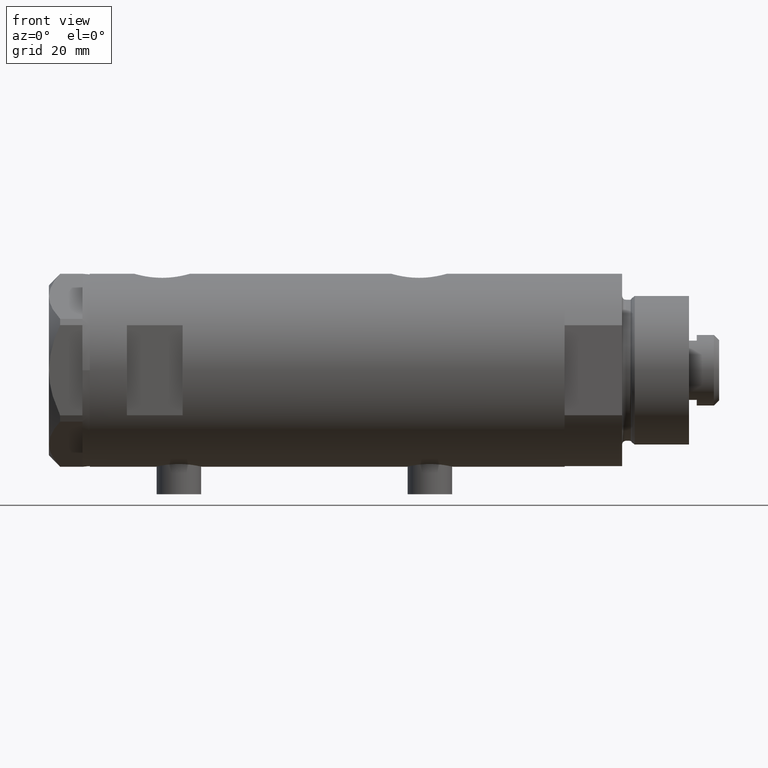
[diagram: clean part render]
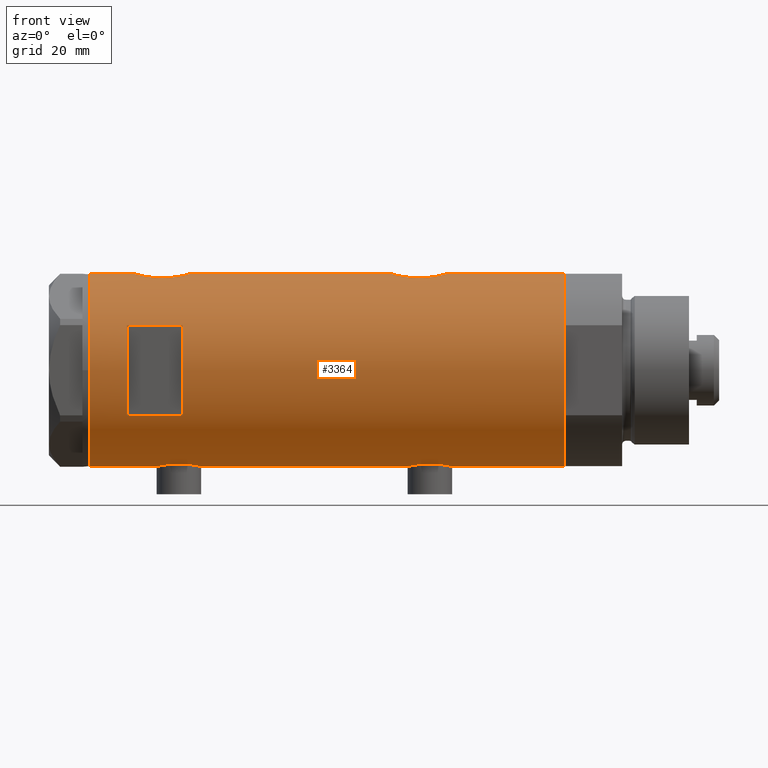
[diagram: same view with one face highlighted and labeled with its STEP entity id]
A machine part, front view. The second image highlights one B-rep face of the part: STEP entity #3364.
In plain terms, the highlighted cylindrical surface (partial cylindrical patch) has radius 26 mm, axis along (-1, -0, 0).
Its self-contained STEP definition (entity closure, byte-faithful):
#17 = CARTESIAN_POINT ( 'NONE',  ( 25.72873412774685775, -3.768477344985551536, 50.95287460144461988 ) ) ;
#19 = CARTESIAN_POINT ( 'NONE',  ( -25.67167563980648382, -4.129238867693851844, 35.24065943568895420 ) ) ;
#30 = CARTESIAN_POINT ( 'NONE',  ( -25.85385060263650558, -2.778671585188185134, -22.03685548695763430 ) ) ;
#35 = VECTOR ( 'NONE', #273, 1000.000000000000000 ) ;
#49 = AXIS2_PLACEMENT_3D ( 'NONE', #3003, #2505, #478 ) ;
#52 = CARTESIAN_POINT ( 'NONE',  ( -25.92364458890658696, -2.026637113504536458, 45.87630990691474153 ) ) ;
#74 = EDGE_CURVE ( 'NONE', #3150, #839, #2864, .T. ) ;
#108 = ORIENTED_EDGE ( 'NONE', *, *, #4770, .F. ) ;
#111 = CARTESIAN_POINT ( 'NONE',  ( -25.57228991600092272, -4.705691472451700719, -31.78339690124654027 ) ) ;
#115 = CARTESIAN_POINT ( 'NONE',  ( 25.17393786935996403, -6.507882790539422757, 40.68962666655968974 ) ) ;
#118 = CARTESIAN_POINT ( 'NONE',  ( -25.52274351135605102, -4.960534548086199536, 43.75751745340735255 ) ) ;
#140 = EDGE_CURVE ( 'NONE', #709, #3599, #765, .T. ) ;
#143 = CARTESIAN_POINT ( 'NONE',  ( 25.48871066912672489, -5.133852125086502127, 38.97709693256022945 ) ) ;
#201 = CARTESIAN_POINT ( 'NONE',  ( 25.52567976009756379, -4.956266804246105551, -19.09980072540905383 ) ) ;
#203 = VECTOR ( 'NONE', #2821, 1000.000000000000000 ) ;
#259 = FACE_OUTER_BOUND ( 'NONE', #4230, .T. ) ;
#273 = DIRECTION ( 'NONE',  ( 0.000000000000000000, 0.000000000000000000, 1.000000000000000000 ) ) ;
#276 = CARTESIAN_POINT ( 'NONE',  ( 25.31004928890824957, -5.952041021437452173, -20.18019400116494211 ) ) ;
#304 = CARTESIAN_POINT ( 'NONE',  ( 25.93085545515511470, -1.956676574435509242, -17.49272963169731909 ) ) ;
#317 = VERTEX_POINT ( 'NONE', #4563 ) ;
#343 = CARTESIAN_POINT ( 'NONE',  ( 25.52567976009756379, -4.956266804246105551, 50.10019927459094191 ) ) ;
#350 = ORIENTED_EDGE ( 'NONE', *, *, #1694, .T. ) ;
#376 = CARTESIAN_POINT ( 'NONE',  ( -25.85288666140180780, -2.767917424206675747, 34.34257790010329359 ) ) ;
#421 = CARTESIAN_POINT ( 'NONE',  ( -25.49846181844015192, -5.083495422175122513, 43.59177503382596797 ) ) ;
#443 = CARTESIAN_POINT ( 'NONE',  ( 26.00000000000000355, 0.000000000000000000, -63.95000000000000995 ) ) ;
#449 = CARTESIAN_POINT ( 'NONE',  ( -25.59645788645698872, -4.565358797148513226, 44.22330529203480864 ) ) ;
#456 = CARTESIAN_POINT ( 'NONE',  ( -25.99036913299956097, -0.8159609457881449313, -33.86031143031890878 ) ) ;
#476 = CARTESIAN_POINT ( 'NONE',  ( -25.38662204309617110, -5.616507264474310368, 42.72199377719325497 ) ) ;
#478 = DIRECTION ( 'NONE',  ( 1.000000000000000000, 0.000000000000000000, 0.000000000000000000 ) ) ;
#482 = VERTEX_POINT ( 'NONE', #1568 ) ;
#483 = CARTESIAN_POINT ( 'NONE',  ( -26.00000000000000355, 3.184077527325983904E-15, -33.90000000000001279 ) ) ;
#501 = CARTESIAN_POINT ( 'NONE',  ( -25.95206678899177888, -1.628763264760260565, 45.99800813330215021 ) ) ;
#527 = CARTESIAN_POINT ( 'NONE',  ( -25.25025691038242570, -6.198787452305309920, 39.12558834604205771 ) ) ;
#540 = EDGE_CURVE ( 'NONE', #317, #564, #3277, .T. ) ;
#564 = VERTEX_POINT ( 'NONE', #3450 ) ;
#571 = VECTOR ( 'NONE', #2346, 1000.000000000000000 ) ;
#586 = CARTESIAN_POINT ( 'NONE',  ( 24.96970063328116751, -7.247045583599691199, -26.69719214854802658 ) ) ;
#589 = ORIENTED_EDGE ( 'NONE', *, *, #3247, .F. ) ;
#614 = CARTESIAN_POINT ( 'NONE',  ( 25.78902964777116225, -3.336582972512953660, -31.48475840457738073 ) ) ;
#638 = CARTESIAN_POINT ( 'NONE',  ( 25.59500516383205593, -4.575229401795793294, -30.69787755065420143 ) ) ;
#658 = EDGE_CURVE ( 'NONE', #4642, #2210, #4130, .T. ) ;
#673 = VECTOR ( 'NONE', #2517, 1000.000000000000000 ) ;
#688 = CARTESIAN_POINT ( 'NONE',  ( 25.30930190055639883, -5.959775463244125326, -29.32974043478030168 ) ) ;
#709 = VERTEX_POINT ( 'NONE', #2015 ) ;
#713 = CARTESIAN_POINT ( 'NONE',  ( 26.00000000000000355, -3.975025925197986111E-20, 51.95000000000000284 ) ) ;
#756 = CARTESIAN_POINT ( 'NONE',  ( 24.96672817551788626, -7.257586026187397898, 46.40384199721297165 ) ) ;
#765 = CIRCLE ( 'NONE', #4890, 26.00000000000000355 ) ;
#785 = AXIS2_PLACEMENT_3D ( 'NONE', #4971, #1363, #4573 ) ;
#796 = VERTEX_POINT ( 'NONE', #1313 ) ;
#807 = CARTESIAN_POINT ( 'NONE',  ( -25.28680988956730502, -6.048472998962281189, -29.27627694188244334 ) ) ;
#812 = CARTESIAN_POINT ( 'NONE',  ( -25.52190669608696183, -4.968444991210422934, 36.13658907807516130 ) ) ;
#816 = CARTESIAN_POINT ( 'NONE',  ( -25.92425332714051223, -2.018894156999441858, -33.57896120675329854 ) ) ;
#817 = ORIENTED_EDGE ( 'NONE', *, *, #5102, .F. ) ;
#833 = CARTESIAN_POINT ( 'NONE',  ( -25.64593536028936782, -4.278686337618957225, 44.51031602960880207 ) ) ;
#839 = VERTEX_POINT ( 'NONE', #3440 ) ;
#863 = CARTESIAN_POINT ( 'NONE',  ( -25.28632996747171902, -6.050474653715411932, 41.56911870841535972 ) ) ;
#887 = CARTESIAN_POINT ( 'NONE',  ( -25.67167563980648382, -4.129238867693853621, -32.35934056431106143 ) ) ;
#889 = CARTESIAN_POINT ( 'NONE',  ( 25.11243836838846732, -6.738202653785822172, 41.12043350844842848 ) ) ;
#891 = CARTESIAN_POINT ( 'NONE',  ( -25.38744165544137132, -5.612847683295914436, 37.17012416761524918 ) ) ;
#909 = CARTESIAN_POINT ( 'NONE',  ( -25.23763877699557057, -6.249927116972442853, -27.85835527665468803 ) ) ;
#917 = CARTESIAN_POINT ( 'NONE',  ( -25.42977453177915947, -5.420307583276853691, 36.81187728206637644 ) ) ;
#934 = CARTESIAN_POINT ( 'NONE',  ( -25.24765475072629783, -6.209883762780005867, -26.83321815644901065 ) ) ;
#979 = CARTESIAN_POINT ( 'NONE',  ( 24.89854802586675930, -7.487520416261735257, -24.25184316422095776 ) ) ;
#981 = ORIENTED_EDGE ( 'NONE', *, *, #2199, .F. ) ;
#1058 = CARTESIAN_POINT ( 'NONE',  ( 25.88994451797512042, -2.432613607265603495, -31.86140968713203137 ) ) ;
#1125 = VECTOR ( 'NONE', #4927, 1000.000000000000000 ) ;
#1162 = CARTESIAN_POINT ( 'NONE',  ( 25.11342038069227200, -6.734617143597205313, 47.78770695790494472 ) ) ;
#1163 = CARTESIAN_POINT ( 'NONE',  ( -25.87202607293666645, -2.583404329177992675, 34.25526333145487712 ) ) ;
#1216 = CARTESIAN_POINT ( 'NONE',  ( -25.38744165544135711, -5.612847683295910883, -30.42987583238477001 ) ) ;
#1232 = CARTESIAN_POINT ( 'NONE',  ( -25.99009752186833566, -0.8230863847107473541, -21.44082928593318016 ) ) ;
#1244 = CARTESIAN_POINT ( 'NONE',  ( 24.89475831528844552, -7.500067228253129770, 43.95662571746462532 ) ) ;
#1245 = CARTESIAN_POINT ( 'NONE',  ( -25.71926338401908652, -3.813768894920905872, 44.90572139833817289 ) ) ;
#1260 = CARTESIAN_POINT ( 'NONE',  ( -25.81160981652327280, -3.129523010631799274, -33.06392973722074657 ) ) ;
#1265 = CARTESIAN_POINT ( 'NONE',  ( -25.85385060263650203, -2.778671585188186910, 45.56314451304237423 ) ) ;
#1294 = CARTESIAN_POINT ( 'NONE',  ( -25.85288666140181135, -2.767917424206676635, -33.25742209989672205 ) ) ;
#1313 = CARTESIAN_POINT ( 'NONE',  ( -26.00000000000000355, 3.184077527313362130E-15, 33.70000000000000995 ) ) ;
#1323 = CARTESIAN_POINT ( 'NONE',  ( 25.78902964777116225, -3.336582972512940781, 37.71524159542261145 ) ) ;
#1324 = CARTESIAN_POINT ( 'NONE',  ( -26.00000000000000355, -2.813058302341337106E-16, 46.20000000000000284 ) ) ;
#1340 = CARTESIAN_POINT ( 'NONE',  ( 25.93098857934040424, -1.953835360821270184, 37.19226335297439334 ) ) ;
#1363 = DIRECTION ( 'NONE',  ( 0.000000000000000000, 0.000000000000000000, 1.000000000000000000 ) ) ;
#1382 = ORIENTED_EDGE ( 'NONE', *, *, #2782, .F. ) ;
#1404 = CARTESIAN_POINT ( 'NONE',  ( 25.93098857934040780, -1.953835360821264411, -32.00773664702560950 ) ) ;
#1456 = CARTESIAN_POINT ( 'NONE',  ( 24.89478872726946079, -7.499966281647700406, -24.50178149365219227 ) ) ;
#1481 = CARTESIAN_POINT ( 'NONE',  ( 24.96672817551788270, -7.257586026187391681, -22.79615800278702409 ) ) ;
#1497 = DIRECTION ( 'NONE',  ( 0.000000000000000000, 0.000000000000000000, 1.000000000000000000 ) ) ;
#1526 = CARTESIAN_POINT ( 'NONE',  ( 26.00000000000000355, 0.000000000000000000, -63.95000000000000995 ) ) ;
#1554 = CARTESIAN_POINT ( 'NONE',  ( 25.17510548814052740, -6.503212750695464450, 48.21761787815347589 ) ) ;
#1555 = CARTESIAN_POINT ( 'NONE',  ( -25.64593536028935716, -4.278686337618962554, -23.08968397039123133 ) ) ;
#1561 = ORIENTED_EDGE ( 'NONE', *, *, #3723, .F. ) ;
#1568 = CARTESIAN_POINT ( 'NONE',  ( 26.00000000000000355, -3.975025925197986111E-20, 51.95000000000000284 ) ) ;
#1580 = CARTESIAN_POINT ( 'NONE',  ( 24.91324908721446008, -7.438459228814657820, 45.44017499374189839 ) ) ;
#1581 = CARTESIAN_POINT ( 'NONE',  ( -25.67063510297209561, -4.128418051804845668, -22.95317424728735389 ) ) ;
#1611 = ORIENTED_EDGE ( 'NONE', *, *, #140, .F. ) ;
#1615 = CARTESIAN_POINT ( 'NONE',  ( -25.95206678899177533, -1.628763264760259677, -21.60199186669786542 ) ) ;
#1632 = CARTESIAN_POINT ( 'NONE',  ( 25.38125492692911322, -5.649348210287286953, 39.49305665653605502 ) ) ;
#1672 = CARTESIAN_POINT ( 'NONE',  ( -26.00000000000000355, 3.184081677783118585E-15, -63.95000000000000995 ) ) ;
#1694 = EDGE_CURVE ( 'NONE', #2405, #3170, #2478, .T. ) ;
#1707 = CARTESIAN_POINT ( 'NONE',  ( 26.00000000000001066, -0.4982617809740571002, 36.95000000000000995 ) ) ;
#1732 = CARTESIAN_POINT ( 'NONE',  ( -25.31551596256916525, -5.928819821281959612, 37.92988508095918121 ) ) ;
#1737 = CARTESIAN_POINT ( 'NONE',  ( -26.00000000000000355, 3.184081677783118585E-15, -63.95000000000000995 ) ) ;
#1746 = CARTESIAN_POINT ( 'NONE',  ( -25.28632996747171546, -6.050474653715413709, -26.03088129158463815 ) ) ;
#1788 = EDGE_CURVE ( 'NONE', #3600, #3150, #3804, .T. ) ;
#1792 = CARTESIAN_POINT ( 'NONE',  ( 25.01107424167501136, -7.102941973849615565, -27.17062848662579100 ) ) ;
#1826 = DIRECTION ( 'NONE',  ( 1.000000000000000000, 0.000000000000000000, 0.000000000000000000 ) ) ;
#1852 = DIRECTION ( 'NONE',  ( 0.000000000000000000, 0.000000000000000000, 1.000000000000000000 ) ) ;
#1866 = CARTESIAN_POINT ( 'NONE',  ( 26.00000000000000000, -0.4982617809740598758, -32.24999999999999289 ) ) ;
#1895 = CARTESIAN_POINT ( 'NONE',  ( 25.00829008792691965, -7.115081037226463678, -22.32698996259181001 ) ) ;
#1913 = LINE ( 'NONE', #1526, #571 ) ;
#1937 = EDGE_LOOP ( 'NONE', ( #981, #817, #1611, #2129 ) ) ;
#1942 = CARTESIAN_POINT ( 'NONE',  ( 25.38109653984944103, -5.641393955635660262, 49.39819092448751547 ) ) ;
#1943 = VECTOR ( 'NONE', #3356, 1000.000000000000000 ) ;
#1975 = CARTESIAN_POINT ( 'NONE',  ( 25.98599366666249466, -0.9828433289544075135, 51.90188401723472822 ) ) ;
#1976 = CARTESIAN_POINT ( 'NONE',  ( -25.57167894663062313, -4.701762988462092174, -23.52719549807583022 ) ) ;
#1979 = CARTESIAN_POINT ( 'NONE',  ( -26.00000000000000000, -0.4086738135806028960, 33.70000000000000995 ) ) ;
#1982 = ORIENTED_EDGE ( 'NONE', *, *, #658, .F. ) ;
#1988 = CARTESIAN_POINT ( 'NONE',  ( -26.00000000000000355, 9.891741702313250758E-16, -21.40000000000000568 ) ) ;
#1997 = ORIENTED_EDGE ( 'NONE', *, *, #3241, .T. ) ;
#2015 = CARTESIAN_POINT ( 'NONE',  ( 12.12435565298214080, -23.00000000000000355, 53.94999999999999574 ) ) ;
#2021 = CARTESIAN_POINT ( 'NONE',  ( -25.42977453177915592, -5.420307583276851915, -30.78812271793362498 ) ) ;
#2025 = CARTESIAN_POINT ( 'NONE',  ( 24.95200646071793571, -7.307522494171279526, 42.74392435812723079 ) ) ;
#2027 = VECTOR ( 'NONE', #3709, 1000.000000000000000 ) ;
#2028 = CARTESIAN_POINT ( 'NONE',  ( -25.74330903162726614, -3.648508829439214285, 45.02867714715799252 ) ) ;
#2054 = CARTESIAN_POINT ( 'NONE',  ( -12.12435565298214080, -23.00000000000000355, -63.95000000000000995 ) ) ;
#2094 = LINE ( 'NONE', #4690, #35 ) ;
#2101 = CARTESIAN_POINT ( 'NONE',  ( 25.98569226047905190, -0.9886551788957265163, 36.99917623399823441 ) ) ;
#2102 = CARTESIAN_POINT ( 'NONE',  ( -25.99999999999998934, -0.4144764235405755670, 46.19999999999998863 ) ) ;
#2125 = CARTESIAN_POINT ( 'NONE',  ( -25.23758491649666169, -6.250144606721703688, -27.23988300428193554 ) ) ;
#2129 = ORIENTED_EDGE ( 'NONE', *, *, #4523, .F. ) ;
#2132 = CARTESIAN_POINT ( 'NONE',  ( 25.30930190055639883, -5.959775463244126215, 39.87025956521971892 ) ) ;
#2156 = EDGE_CURVE ( 'NONE', #564, #796, #2551, .T. ) ;
#2190 = CARTESIAN_POINT ( 'NONE',  ( 25.17510548814052740, -6.503212750695460009, -20.98238212184651275 ) ) ;
#2199 = EDGE_CURVE ( 'NONE', #2855, #3693, #2805, .T. ) ;
#2210 = VERTEX_POINT ( 'NONE', #2914 ) ;
#2223 = CARTESIAN_POINT ( 'NONE',  ( 25.62983961939740496, -4.376509667782456425, -30.84558499042960378 ) ) ;
#2277 = CARTESIAN_POINT ( 'NONE',  ( -25.38662204309616754, -5.616507264474312144, -24.87800622280676777 ) ) ;
#2304 = CARTESIAN_POINT ( 'NONE',  ( 26.00000000000000355, 6.604469597105595072E-16, -32.25000000000000000 ) ) ;
#2323 = CARTESIAN_POINT ( 'NONE',  ( 25.93085545515512180, -1.956676574435509686, 51.70727036830268020 ) ) ;
#2346 = DIRECTION ( 'NONE',  ( 0.000000000000000000, 0.000000000000000000, 1.000000000000000000 ) ) ;
#2349 = CARTESIAN_POINT ( 'NONE',  ( -12.12435565298214080, -23.00000000000000355, 38.94999999999999574 ) ) ;
#2398 = CARTESIAN_POINT ( 'NONE',  ( -25.59645788645698872, -4.565358797148519443, -23.37669470796522120 ) ) ;
#2399 = CARTESIAN_POINT ( 'NONE',  ( -25.92425332714050867, -2.018894156999440526, 34.02103879324670999 ) ) ;
#2405 = VERTEX_POINT ( 'NONE', #4358 ) ;
#2421 = CARTESIAN_POINT ( 'NONE',  ( -25.57167894663061958, -4.701762988462087733, 44.07280450192416765 ) ) ;
#2426 = CARTESIAN_POINT ( 'NONE',  ( -25.87202607293667000, -2.583404329177994008, -33.34473666854514562 ) ) ;
#2443 = CARTESIAN_POINT ( 'NONE',  ( 25.88994451797512042, -2.432613607265590172, 37.33859031286797858 ) ) ;
#2445 = CARTESIAN_POINT ( 'NONE',  ( -25.25769689814630325, -6.168504065326071206, 38.92353364703254925 ) ) ;
#2478 = LINE ( 'NONE', #443, #203 ) ;
#2491 = CARTESIAN_POINT ( 'NONE',  ( -25.24022290516699485, -6.239518219915428432, -28.06597215938432655 ) ) ;
#2503 = CARTESIAN_POINT ( 'NONE',  ( -25.24765475072630139, -6.209883762780005867, 40.76678184355099432 ) ) ;
#2505 = DIRECTION ( 'NONE',  ( 0.000000000000000000, 0.000000000000000000, 1.000000000000000000 ) ) ;
#2517 = DIRECTION ( 'NONE',  ( 0.000000000000000000, 0.000000000000000000, 1.000000000000000000 ) ) ;
#2548 = ORIENTED_EDGE ( 'NONE', *, *, #1788, .T. ) ;
#2551 = LINE ( 'NONE', #3752, #1125 ) ;
#2580 = DIRECTION ( 'NONE',  ( 1.000000000000000000, 0.000000000000000000, 0.000000000000000000 ) ) ;
#2588 = CARTESIAN_POINT ( 'NONE',  ( 24.95200646071793926, -7.307522494171277749, -26.45607564187278982 ) ) ;
#2590 = ORIENTED_EDGE ( 'NONE', *, *, #540, .F. ) ;
#2609 = CARTESIAN_POINT ( 'NONE',  ( 25.98599366666248756, -0.9828433289544070695, -17.29811598276525686 ) ) ;
#2640 = CARTESIAN_POINT ( 'NONE',  ( 24.89475831528845617, -7.500067228253131546, -25.24337428253536331 ) ) ;
#2663 = CARTESIAN_POINT ( 'NONE',  ( 25.52449676677458967, -4.953491517965880497, -30.38674491334075256 ) ) ;
#2688 = CARTESIAN_POINT ( 'NONE',  ( 24.91324908721446008, -7.438459228814659596, -23.75982500625810445 ) ) ;
#2708 = DIRECTION ( 'NONE',  ( 1.000000000000000000, 0.000000000000000000, 0.000000000000000000 ) ) ;
#2718 = CARTESIAN_POINT ( 'NONE',  ( -26.00000000000000355, 3.184081677783118585E-15, 63.95000000000000995 ) ) ;
#2744 = CARTESIAN_POINT ( 'NONE',  ( 25.59665538672497576, -4.580438224580679396, 50.40889127712392082 ) ) ;
#2749 = ORIENTED_EDGE ( 'NONE', *, *, #2156, .F. ) ;
#2764 = CARTESIAN_POINT ( 'NONE',  ( 25.00829008792691965, -7.115081037226468119, 46.87301003740818572 ) ) ;
#2782 = EDGE_CURVE ( 'NONE', #2405, #839, #4329, .T. ) ;
#2793 = CARTESIAN_POINT ( 'NONE',  ( -26.00000000000000355, 3.184077527313362130E-15, 33.70000000000000995 ) ) ;
#2805 = CIRCLE ( 'NONE', #785, 26.00000000000000355 ) ;
#2812 = CARTESIAN_POINT ( 'NONE',  ( -25.31551596256915815, -5.928819821281960500, -29.67011491904085929 ) ) ;
#2821 = DIRECTION ( 'NONE',  ( 0.000000000000000000, 0.000000000000000000, 1.000000000000000000 ) ) ;
#2825 = CARTESIAN_POINT ( 'NONE',  ( -25.95218276861526618, -1.627663810194431626, -33.69850980387604267 ) ) ;
#2855 = VERTEX_POINT ( 'NONE', #2349 ) ;
#2864 = LINE ( 'NONE', #3299, #2027 ) ;
#2887 = CARTESIAN_POINT ( 'NONE',  ( -12.12435565298214080, -23.00000000000000355, 53.94999999999999574 ) ) ;
#2895 = CARTESIAN_POINT ( 'NONE',  ( -25.99009752186832500, -0.8230863847107482423, 46.15917071406681060 ) ) ;
#2910 = LINE ( 'NONE', #4515, #673 ) ;
#2914 = CARTESIAN_POINT ( 'NONE',  ( 26.00000000000000355, 0.000000000000000000, 63.95000000000000995 ) ) ;
#2933 = CARTESIAN_POINT ( 'NONE',  ( -25.25025691038242215, -6.198787452305309920, -28.47441165395796503 ) ) ;
#2963 = CARTESIAN_POINT ( 'NONE',  ( -25.31538696791481158, -5.929326713517954595, -25.63203367791900433 ) ) ;
#2981 = LINE ( 'NONE', #1737, #1943 ) ;
#2986 = CARTESIAN_POINT ( 'NONE',  ( 26.00000000000000355, -3.975025925197986111E-20, -17.25000000000000000 ) ) ;
#3003 = CARTESIAN_POINT ( 'NONE',  ( 0.000000000000000000, 0.000000000000000000, -63.95000000000000995 ) ) ;
#3009 = CARTESIAN_POINT ( 'NONE',  ( 25.72912156655465665, -3.765948295762493458, -31.25442975399221623 ) ) ;
#3031 = CARTESIAN_POINT ( 'NONE',  ( 25.72873412774686486, -3.768477344985556421, -18.24712539855537585 ) ) ;
#3065 = CARTESIAN_POINT ( 'NONE',  ( 25.17393786935996047, -6.507882790539420093, -28.51037333344033442 ) ) ;
#3134 = CARTESIAN_POINT ( 'NONE',  ( 25.89059789403177447, -2.425642437452259603, 51.56377447242302736 ) ) ;
#3150 = VERTEX_POINT ( 'NONE', #3784 ) ;
#3170 = VERTEX_POINT ( 'NONE', #3859 ) ;
#3190 = CARTESIAN_POINT ( 'NONE',  ( -25.74330903162726614, -3.648508829439216061, -22.57132285284203732 ) ) ;
#3216 = CARTESIAN_POINT ( 'NONE',  ( 25.31004928890825312, -5.952041021437453949, 49.01980599883506073 ) ) ;
#3241 = EDGE_CURVE ( 'NONE', #482, #2210, #1913, .T. ) ;
#3246 = CARTESIAN_POINT ( 'NONE',  ( 25.62983961939739785, -4.376509667782453761, 38.35441500957040262 ) ) ;
#3247 = EDGE_CURVE ( 'NONE', #482, #3170, #4257, .T. ) ;
#3250 = CARTESIAN_POINT ( 'NONE',  ( -25.28680988956730857, -6.048472998962280300, 38.32372305811758650 ) ) ;
#3277 = B_SPLINE_CURVE_WITH_KNOTS ( 'NONE', 3,
 ( #483, #4051, #456, #2825, #816, #2426, #1294, #1260, #3290, #4495, #887, #111, #4519, #2021, #1216, #2812, #807, #4013, #2933, #2491, #909, #2125, #934, #1746, #2963, #2277, #3800, #5042, #3605, #1976, #2398, #1555, #1581, #3967, #3190, #4762, #30, #4376, #1615, #1232, #3982, #1988 ),
 .UNSPECIFIED., .F., .F.,
 ( 4, 2, 2, 2, 2, 2, 2, 2, 2, 2, 2, 2, 2, 2, 2, 2, 2, 2, 2, 2, 4 ),
 ( 0.01961238453869442941, 0.02083783025472766420, 0.02206327597076090247, 0.02267599882877751813, 0.02328872168679413032, 0.02451416740282735818, 0.02573961311886058950, 0.02696505883489381389, 0.02819050455092704521, 0.02880322740894365394, 0.02941595026696026266, 0.03064139598299348011, 0.03186684169902669755, 0.03309228741505991500, 0.03370501027307653413, 0.03431773313109314633, 0.03493045598910975852, 0.03554317884712637071, 0.03676862456315959510, 0.03799407027919281948, 0.03921951599522604387 ),
 .UNSPECIFIED. ) ;
#3290 = CARTESIAN_POINT ( 'NONE',  ( -25.78943824387523875, -3.306687742228911819, -32.95754138783468079 ) ) ;
#3297 = CARTESIAN_POINT ( 'NONE',  ( -25.23758491649666169, -6.250144606721704577, 40.36011699571809430 ) ) ;
#3299 = CARTESIAN_POINT ( 'NONE',  ( 26.00000000000000355, 0.000000000000000000, -63.95000000000000995 ) ) ;
#3305 = AXIS2_PLACEMENT_3D ( 'NONE', #4314, #1497, #2708 ) ;
#3326 = CARTESIAN_POINT ( 'NONE',  ( 26.00000000000000355, 2.393127611988522640E-16, 36.95000000000000284 ) ) ;
#3327 = CARTESIAN_POINT ( 'NONE',  ( -25.31538696791480447, -5.929326713517952818, 41.96796632208099709 ) ) ;
#3352 = CARTESIAN_POINT ( 'NONE',  ( -25.24022290516698419, -6.239518219915426656, 39.53402784061567843 ) ) ;
#3356 = DIRECTION ( 'NONE',  ( 0.000000000000000000, 0.000000000000000000, 1.000000000000000000 ) ) ;
#3364 = ADVANCED_FACE ( 'NONE', ( #259, #3424 ), #3806, .T. ) ;
#3375 = DIRECTION ( 'NONE',  ( -0.000000000000000000, 0.000000000000000000, -1.000000000000000000 ) ) ;
#3424 = FACE_BOUND ( 'NONE', #1937, .T. ) ;
#3440 = CARTESIAN_POINT ( 'NONE',  ( 26.00000000000000355, 6.604469597105595072E-16, -32.25000000000000000 ) ) ;
#3450 = CARTESIAN_POINT ( 'NONE',  ( -26.00000000000000355, 9.891741702313250758E-16, -21.40000000000000568 ) ) ;
#3457 = CARTESIAN_POINT ( 'NONE',  ( 25.27534302296961144, -6.097250460344744383, -20.37590386902925843 ) ) ;
#3491 = CARTESIAN_POINT ( 'NONE',  ( 24.92415241886516242, -7.401968919186685092, -23.51676462555185765 ) ) ;
#3542 = AXIS2_PLACEMENT_3D ( 'NONE', #5002, #1852, #1826 ) ;
#3599 = VERTEX_POINT ( 'NONE', #2887 ) ;
#3600 = VERTEX_POINT ( 'NONE', #1672 ) ;
#3604 = CARTESIAN_POINT ( 'NONE',  ( 26.00000000000000711, -0.4910237949823162418, 51.95000000000000995 ) ) ;
#3605 = CARTESIAN_POINT ( 'NONE',  ( -25.52274351135604036, -4.960534548086201312, -23.84248254659267374 ) ) ;
#3607 = CARTESIAN_POINT ( 'NONE',  ( -25.72076778631231164, -3.815670258243487378, 34.98312189468123279 ) ) ;
#3630 = CARTESIAN_POINT ( 'NONE',  ( 25.01107424167500071, -7.102941973849614676, 42.02937151337422250 ) ) ;
#3633 = CARTESIAN_POINT ( 'NONE',  ( -25.81232680456767170, -3.137210741985118290, 45.37113657221578933 ) ) ;
#3659 = CARTESIAN_POINT ( 'NONE',  ( -25.67063510297210271, -4.128418051804841227, 44.64682575271267240 ) ) ;
#3679 = LINE ( 'NONE', #2054, #4468 ) ;
#3693 = VERTEX_POINT ( 'NONE', #4492 ) ;
#3703 = CARTESIAN_POINT ( 'NONE',  ( 25.03461301890608581, -7.019803056070501590, 41.79816816893102072 ) ) ;
#3709 = DIRECTION ( 'NONE',  ( 0.000000000000000000, 0.000000000000000000, 1.000000000000000000 ) ) ;
#3723 = EDGE_CURVE ( 'NONE', #3600, #317, #2910, .T. ) ;
#3733 = CARTESIAN_POINT ( 'NONE',  ( 25.72912156655465665, -3.765948295762488129, 37.94557024600776174 ) ) ;
#3752 = CARTESIAN_POINT ( 'NONE',  ( -26.00000000000000355, 3.184081677783118585E-15, -63.95000000000000995 ) ) ;
#3758 = CARTESIAN_POINT ( 'NONE',  ( 0.000000000000000000, 0.000000000000000000, 53.94999999999999574 ) ) ;
#3784 = CARTESIAN_POINT ( 'NONE',  ( 26.00000000000000355, 0.000000000000000000, -63.95000000000000995 ) ) ;
#3786 = VERTEX_POINT ( 'NONE', #4649 ) ;
#3791 = CARTESIAN_POINT ( 'NONE',  ( 25.03461301890608581, -7.019803056070506919, -27.40183183106897147 ) ) ;
#3800 = CARTESIAN_POINT ( 'NONE',  ( -25.42883439573800075, -5.424786127492330579, -24.51918542739092288 ) ) ;
#3804 = CIRCLE ( 'NONE', #49, 26.00000000000000355 ) ;
#3806 = CYLINDRICAL_SURFACE ( 'NONE', #3542, 26.00000000000000355 ) ;
#3822 = CARTESIAN_POINT ( 'NONE',  ( 24.90947356773249766, -7.451722770779339200, -25.73190841828152742 ) ) ;
#3859 = CARTESIAN_POINT ( 'NONE',  ( 26.00000000000000355, 2.393127611988522640E-16, 36.95000000000000284 ) ) ;
#3866 = CARTESIAN_POINT ( 'NONE',  ( 25.38109653984943392, -5.641393955635657598, -19.80180907551248737 ) ) ;
#3966 = CARTESIAN_POINT ( 'NONE',  ( 24.92415241886515176, -7.401968919186680651, 45.68323537444814519 ) ) ;
#3967 = CARTESIAN_POINT ( 'NONE',  ( -25.71926338401910073, -3.813768894920913421, -22.69427860166186051 ) ) ;
#3970 = CARTESIAN_POINT ( 'NONE',  ( -25.95218276861526618, -1.627663810194429406, 33.90149019612396586 ) ) ;
#3982 = CARTESIAN_POINT ( 'NONE',  ( -25.99999999999999645, -0.4144764235405757891, -21.39999999999999858 ) ) ;
#3995 = CARTESIAN_POINT ( 'NONE',  ( -25.78943824387524231, -3.306687742228910487, 34.64245861216535616 ) ) ;
#4013 = CARTESIAN_POINT ( 'NONE',  ( -25.25769689814630325, -6.168504065326071206, -28.67646635296746283 ) ) ;
#4016 = CARTESIAN_POINT ( 'NONE',  ( 24.90947356773250121, -7.451722770779339200, 43.46809158171848964 ) ) ;
#4019 = CARTESIAN_POINT ( 'NONE',  ( -25.57228991600092627, -4.705691472451699831, 35.81660309875347536 ) ) ;
#4026 = B_SPLINE_CURVE_WITH_KNOTS ( 'NONE', 3,
 ( #2793, #1979, #4763, #3970, #2399, #1163, #376, #4399, #3995, #3607, #19, #4019, #812, #917, #891, #1732, #3250, #2445, #527, #3352, #4847, #3297, #2503, #863, #3327, #476, #4525, #421, #118, #2421, #449, #833, #3659, #1245, #2028, #3633, #1265, #52, #501, #2895, #2102, #1324 ),
 .UNSPECIFIED., .F., .F.,
 ( 4, 2, 2, 2, 2, 2, 2, 2, 2, 2, 2, 2, 2, 2, 2, 2, 2, 2, 2, 2, 4 ),
 ( 0.01961238453869442941, 0.02083783025472767114, 0.02206327597076090941, 0.02267599882877753201, 0.02328872168679415461, 0.02451416740282739287, 0.02573961311886063114, 0.02696505883489386940, 0.02819050455092710766, 0.02880322740894371986, 0.02941595026696032858, 0.03064139598299354950, 0.03186684169902676694, 0.03309228741505998439, 0.03370501027307658271, 0.03431773313109318796, 0.03493045598910978627, 0.03554317884712639153, 0.03676862456315960898, 0.03799407027919282642, 0.03921951599522604387 ),
 .UNSPECIFIED. ) ;
#4038 = DIRECTION ( 'NONE',  ( -0.000000000000000000, -0.000000000000000000, -1.000000000000000000 ) ) ;
#4051 = CARTESIAN_POINT ( 'NONE',  ( -26.00000000000000355, -0.4086738135806045058, -33.90000000000001990 ) ) ;
#4130 = CIRCLE ( 'NONE', #3305, 26.00000000000000355 ) ;
#4133 = EDGE_CURVE ( 'NONE', #3786, #4642, #2981, .T. ) ;
#4181 = CARTESIAN_POINT ( 'NONE',  ( 26.00000000000000355, -0.4910237949823167969, -17.25000000000000355 ) ) ;
#4230 = EDGE_LOOP ( 'NONE', ( #1561, #2548, #4905, #1382, #350, #589, #1997, #1982, #5194, #108, #2749, #2590 ) ) ;
#4242 = CARTESIAN_POINT ( 'NONE',  ( 25.38125492692911322, -5.649348210287286953, -29.70694334346396204 ) ) ;
#4257 = B_SPLINE_CURVE_WITH_KNOTS ( 'NONE', 3,
 ( #713, #3604, #1975, #2323, #3134, #4738, #17, #2744, #343, #4733, #1942, #3216, #5170, #1554, #1162, #2764, #756, #3966, #1580, #4788, #4896, #1244, #4016, #2025, #4466, #3630, #3703, #889, #115, #2132, #1632, #143, #4867, #4928, #3246, #3733, #1323, #2443, #1340, #2101, #1707, #3326 ),
 .UNSPECIFIED., .F., .F.,
 ( 4, 2, 2, 2, 2, 2, 2, 2, 2, 2, 2, 2, 2, 2, 2, 2, 2, 2, 2, 2, 4 ),
 ( 0.02357432247332888128, 0.02504731828495723733, 0.02652031409658558991, 0.02799330990821394596, 0.02946630571984230201, 0.03020280362565647136, 0.03093930153147064072, 0.03241229734309895860, 0.03388529315472728343, 0.03462179106054144584, 0.03535828896635560825, 0.03683128477798394695, 0.03756778268379813018, 0.03830428058961230647, 0.03977727640124069375, 0.04125027221286907408, 0.04198677011868326425, 0.04272326802449744054, 0.04419626383612580006, 0.04566925964775415958, 0.04714225545938251216 ),
 .UNSPECIFIED. ) ;
#4292 = CARTESIAN_POINT ( 'NONE',  ( 25.11243836838846377, -6.738202653785828389, -28.07956649155160278 ) ) ;
#4314 = CARTESIAN_POINT ( 'NONE',  ( 0.000000000000000000, 0.000000000000000000, 63.95000000000000995 ) ) ;
#4329 = B_SPLINE_CURVE_WITH_KNOTS ( 'NONE', 3,
 ( #2986, #4181, #2609, #304, #4587, #4692, #3031, #4637, #201, #5015, #3866, #276, #3457, #2190, #5061, #1895, #1481, #3491, #2688, #979, #1456, #2640, #3822, #2588, #586, #1792, #3791, #4292, #3065, #688, #4242, #4669, #2663, #638, #2223, #3009, #614, #1058, #1404, #4611, #1866, #2304 ),
 .UNSPECIFIED., .F., .F.,
 ( 4, 2, 2, 2, 2, 2, 2, 2, 2, 2, 2, 2, 2, 2, 2, 2, 2, 2, 2, 2, 4 ),
 ( 0.02357432247332886047, 0.02504731828495720264, 0.02652031409658554134, 0.02799330990821388351, 0.02946630571984222569, 0.03020280362565639504, 0.03093930153147056439, 0.03241229734309891003, 0.03388529315472725567, 0.03462179106054142502, 0.03535828896635559437, 0.03683128477798394695, 0.03756778268379813018, 0.03830428058961231341, 0.03977727640124066599, 0.04125027221286903245, 0.04198677011868321568, 0.04272326802449739891, 0.04419626383612575149, 0.04566925964775410407, 0.04714225545938246359 ),
 .UNSPECIFIED. ) ;
#4358 = CARTESIAN_POINT ( 'NONE',  ( 26.00000000000000355, -3.975025925197986111E-20, -17.25000000000000000 ) ) ;
#4376 = CARTESIAN_POINT ( 'NONE',  ( -25.92364458890659762, -2.026637113504535570, -21.72369009308525278 ) ) ;
#4399 = CARTESIAN_POINT ( 'NONE',  ( -25.81160981652327280, -3.129523010631799718, 34.53607026277927616 ) ) ;
#4466 = CARTESIAN_POINT ( 'NONE',  ( 24.96970063328116751, -7.247045583599692975, 42.50280785145199758 ) ) ;
#4468 = VECTOR ( 'NONE', #4038, 1000.000000000000000 ) ;
#4492 = CARTESIAN_POINT ( 'NONE',  ( 12.12435565298214080, -23.00000000000000355, 38.94999999999999574 ) ) ;
#4495 = CARTESIAN_POINT ( 'NONE',  ( -25.72076778631230454, -3.815670258243487822, -32.61687810531881127 ) ) ;
#4515 = CARTESIAN_POINT ( 'NONE',  ( -26.00000000000000355, 3.184081677783118585E-15, -63.95000000000000995 ) ) ;
#4519 = CARTESIAN_POINT ( 'NONE',  ( -25.52190669608696183, -4.968444991210423822, -31.46341092192486855 ) ) ;
#4523 = EDGE_CURVE ( 'NONE', #3693, #709, #2094, .T. ) ;
#4525 = CARTESIAN_POINT ( 'NONE',  ( -25.42883439573800430, -5.424786127492328802, 43.08081457260909275 ) ) ;
#4563 = CARTESIAN_POINT ( 'NONE',  ( -26.00000000000000355, 3.184077527325983904E-15, -33.90000000000001279 ) ) ;
#4573 = DIRECTION ( 'NONE',  ( -1.000000000000000000, 0.000000000000000000, 0.000000000000000000 ) ) ;
#4587 = CARTESIAN_POINT ( 'NONE',  ( 25.89059789403176381, -2.425642437452261380, -17.63622552757698969 ) ) ;
#4611 = CARTESIAN_POINT ( 'NONE',  ( 25.98569226047905545, -0.9886551788957204101, -32.20082376600176843 ) ) ;
#4637 = CARTESIAN_POINT ( 'NONE',  ( 25.59665538672496865, -4.580438224580680284, -18.79110872287611400 ) ) ;
#4642 = VERTEX_POINT ( 'NONE', #2718 ) ;
#4649 = CARTESIAN_POINT ( 'NONE',  ( -26.00000000000000355, -2.813058302341337106E-16, 46.20000000000000284 ) ) ;
#4669 = CARTESIAN_POINT ( 'NONE',  ( 25.48871066912673200, -5.133852125086503015, -30.22290306743977695 ) ) ;
#4690 = CARTESIAN_POINT ( 'NONE',  ( 12.12435565298214080, -23.00000000000000355, -63.95000000000000995 ) ) ;
#4692 = CARTESIAN_POINT ( 'NONE',  ( 25.78993643992928853, -3.329561377902408470, -18.01178439721262592 ) ) ;
#4733 = CARTESIAN_POINT ( 'NONE',  ( 25.41756773306325812, -5.475260495868972122, 49.58140873656950731 ) ) ;
#4738 = CARTESIAN_POINT ( 'NONE',  ( 25.78993643992928853, -3.329561377902404029, 51.18821560278738048 ) ) ;
#4762 = CARTESIAN_POINT ( 'NONE',  ( -25.81232680456767881, -3.137210741985117846, -22.22886342778422630 ) ) ;
#4763 = CARTESIAN_POINT ( 'NONE',  ( -25.99036913299955742, -0.8159609457881432659, 33.73968856968108554 ) ) ;
#4770 = EDGE_CURVE ( 'NONE', #796, #3786, #4026, .T. ) ;
#4788 = CARTESIAN_POINT ( 'NONE',  ( 24.89854802586676286, -7.487520416261735257, 44.94815683577904508 ) ) ;
#4847 = CARTESIAN_POINT ( 'NONE',  ( -25.23763877699556701, -6.249927116972441965, 39.74164472334533116 ) ) ;
#4867 = CARTESIAN_POINT ( 'NONE',  ( 25.52449676677459323, -4.953491517965875168, 38.81325508665924673 ) ) ;
#4890 = AXIS2_PLACEMENT_3D ( 'NONE', #3758, #3375, #2580 ) ;
#4896 = CARTESIAN_POINT ( 'NONE',  ( 24.89478872726946435, -7.499966281647702182, 44.69821850634780702 ) ) ;
#4905 = ORIENTED_EDGE ( 'NONE', *, *, #74, .T. ) ;
#4927 = DIRECTION ( 'NONE',  ( 0.000000000000000000, 0.000000000000000000, 1.000000000000000000 ) ) ;
#4928 = CARTESIAN_POINT ( 'NONE',  ( 25.59500516383206303, -4.575229401795788853, 38.50212244934581207 ) ) ;
#4971 = CARTESIAN_POINT ( 'NONE',  ( 0.000000000000000000, 0.000000000000000000, 38.94999999999999574 ) ) ;
#5002 = CARTESIAN_POINT ( 'NONE',  ( 0.000000000000000000, 0.000000000000000000, -63.95000000000000995 ) ) ;
#5015 = CARTESIAN_POINT ( 'NONE',  ( 25.41756773306324035, -5.475260495868973010, -19.61859126343050974 ) ) ;
#5042 = CARTESIAN_POINT ( 'NONE',  ( -25.49846181844015192, -5.083495422175126066, -24.00822496617402635 ) ) ;
#5061 = CARTESIAN_POINT ( 'NONE',  ( 25.11342038069227200, -6.734617143597201760, -21.41229304209504747 ) ) ;
#5102 = EDGE_CURVE ( 'NONE', #3599, #2855, #3679, .T. ) ;
#5170 = CARTESIAN_POINT ( 'NONE',  ( 25.27534302296962565, -6.097250460344749712, 48.82409613097076573 ) ) ;
#5194 = ORIENTED_EDGE ( 'NONE', *, *, #4133, .F. ) ;